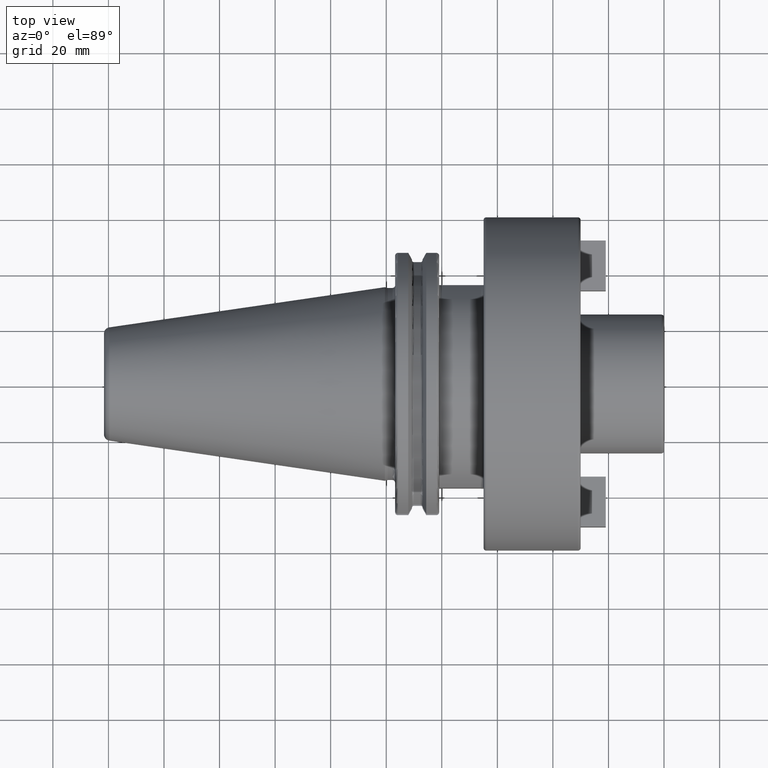
[diagram: clean part render]
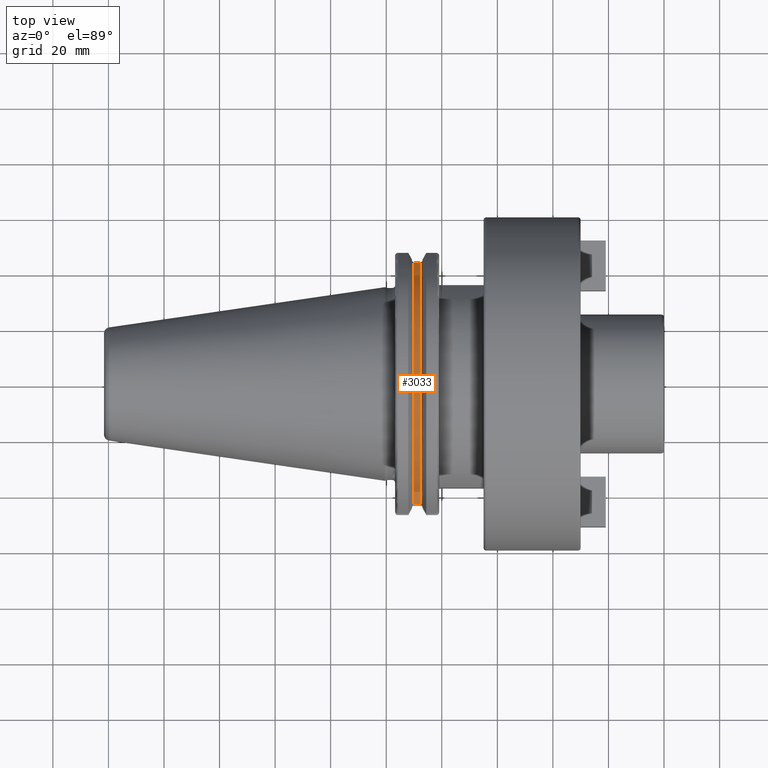
[diagram: same view with one face highlighted and labeled with its STEP entity id]
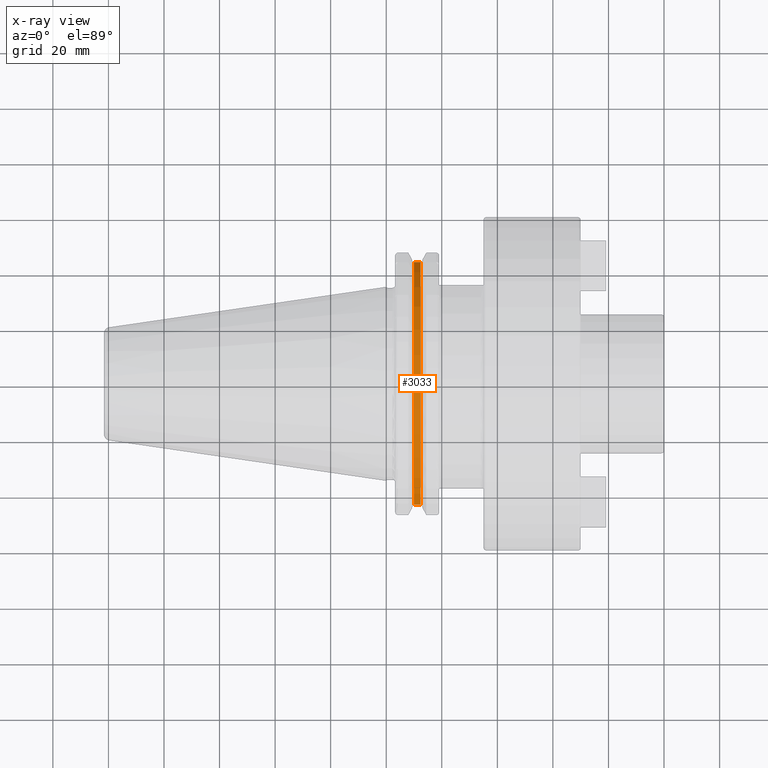
[diagram: x-ray of the same camera — body ghosted, the highlighted face saturated]
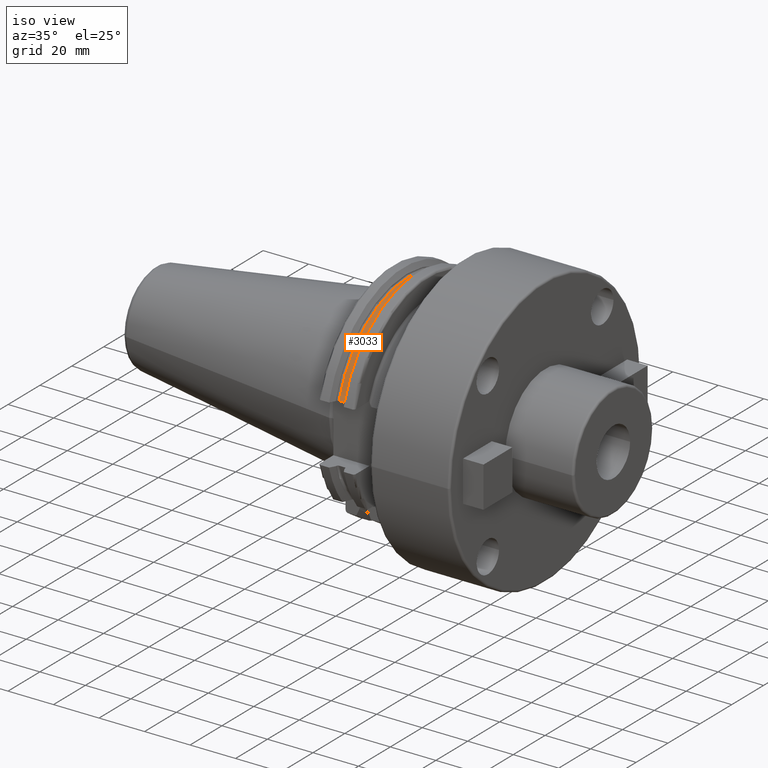
[diagram: same view with one face highlighted and labeled with its STEP entity id]
A machine part, top view. The second image highlights one B-rep face of the part: STEP entity #3033.
The next image is the same camera in x-ray: the body ghosted, the highlighted face saturated — about 0% of this face is hidden behind the body in this view.
A second angle (iso view) of the same face is appended — the face is thin or edge-on in the first view.
In plain terms, the highlighted cylindrical surface (partial cylindrical patch) has radius 45.5 mm, axis along (1, 0, 0).
Its self-contained STEP definition (entity closure, byte-faithful):
#887=CARTESIAN_POINT('',(1.00125E1,4.363301502303E1,1.29E1));
#907=CARTESIAN_POINT('',(1.00125E1,-4.363301502303E1,1.29E1));
#914=DIRECTION('',(1.E0,0.E0,0.E0));
#915=VECTOR('',#914,2.325E0);
#916=CARTESIAN_POINT('',(1.00125E1,4.363301502303E1,1.29E1));
#917=LINE('',#916,#915);
#918=DIRECTION('',(1.E0,0.E0,0.E0));
#919=VECTOR('',#918,2.325E0);
#920=CARTESIAN_POINT('',(1.00125E1,-4.363301502303E1,1.29E1));
#921=LINE('',#920,#919);
#922=CARTESIAN_POINT('',(1.00125E1,0.E0,0.E0));
#923=DIRECTION('',(1.E0,0.E0,0.E0));
#924=DIRECTION('',(0.E0,9.589673631435E-1,2.835164835165E-1));
#925=AXIS2_PLACEMENT_3D('',#922,#923,#924);
#949=CARTESIAN_POINT('',(1.23375E1,0.E0,0.E0));
#950=DIRECTION('',(1.E0,0.E0,0.E0));
#951=DIRECTION('',(0.E0,9.589673631435E-1,2.835164835165E-1));
#952=AXIS2_PLACEMENT_3D('',#949,#950,#951);
#1827=VERTEX_POINT('',#887);
#1828=VERTEX_POINT('',#907);
#1829=CARTESIAN_POINT('',(1.23375E1,4.363301502303E1,1.29E1));
#1830=VERTEX_POINT('',#1829);
#1831=CARTESIAN_POINT('',(1.23375E1,-4.363301502303E1,1.29E1));
#1832=VERTEX_POINT('',#1831);
#3021=CARTESIAN_POINT('',(7.325E0,0.E0,0.E0));
#3022=DIRECTION('',(1.E0,0.E0,0.E0));
#3023=DIRECTION('',(0.E0,-1.E0,0.E0));
#3024=AXIS2_PLACEMENT_3D('',#3021,#3022,#3023);
#3025=CYLINDRICAL_SURFACE('',#3024,4.55E1);
#3026=ORIENTED_EDGE('',*,*,#2838,.T.);
#3028=ORIENTED_EDGE('',*,*,#3027,.T.);
#3029=ORIENTED_EDGE('',*,*,#2889,.F.);
#3030=ORIENTED_EDGE('',*,*,#3014,.F.);
#3031=EDGE_LOOP('',(#3026,#3028,#3029,#3030));
#3032=FACE_OUTER_BOUND('',#3031,.F.);
#3033=ADVANCED_FACE('',(#3032),#3025,.T.);
#926=CIRCLE('',#925,4.55E1);
#953=CIRCLE('',#952,4.55E1);
#2838=EDGE_CURVE('',#1827,#1830,#917,.T.);
#2889=EDGE_CURVE('',#1828,#1832,#921,.T.);
#3014=EDGE_CURVE('',#1827,#1828,#926,.T.);
#3027=EDGE_CURVE('',#1830,#1832,#953,.T.);